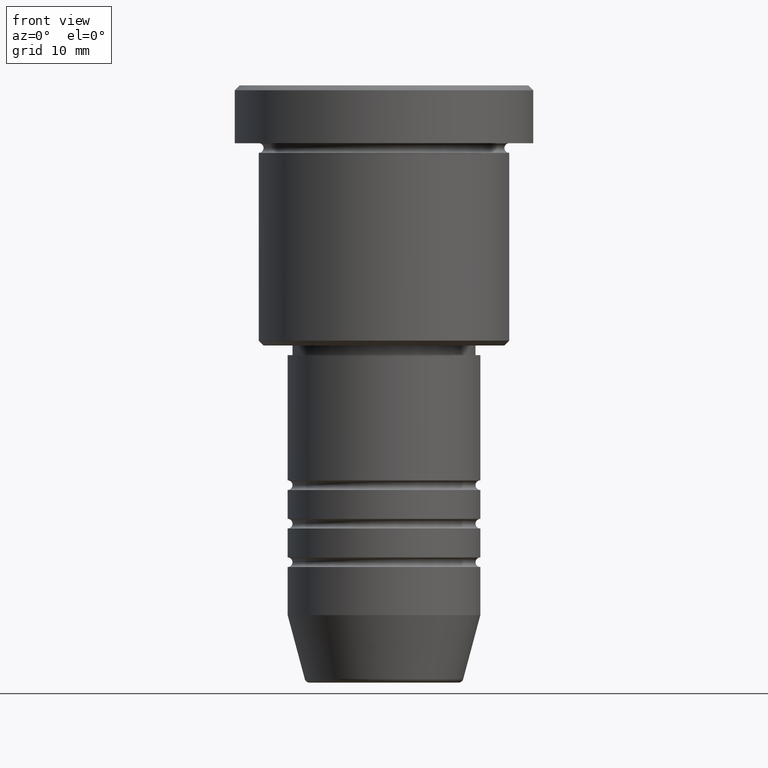
[diagram: clean part render]
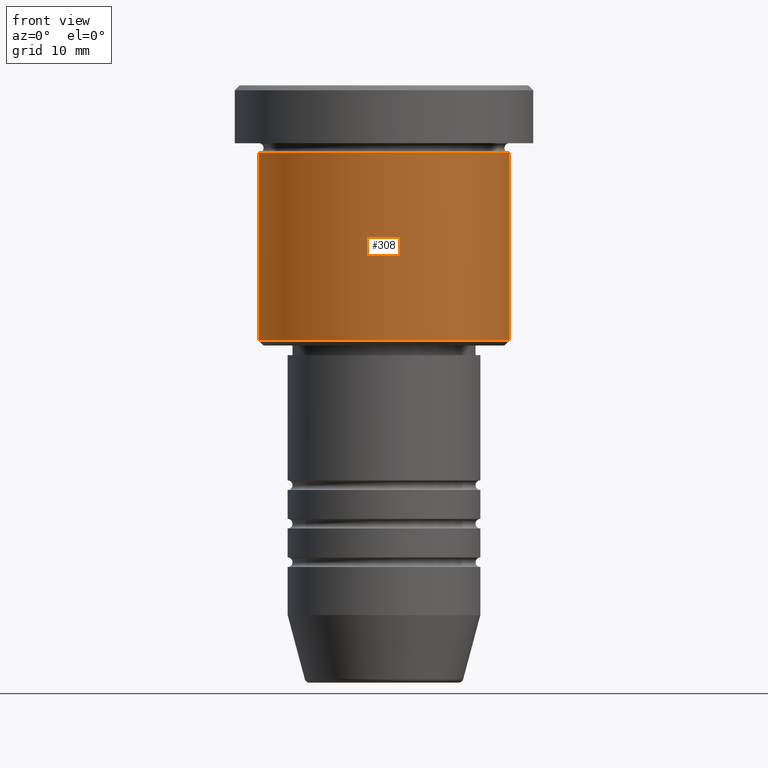
[diagram: same view with one face highlighted and labeled with its STEP entity id]
A machine part, front view. The second image highlights one B-rep face of the part: STEP entity #308.
In plain terms, the highlighted cylindrical surface (partial cylindrical patch) has radius 13 mm, axis along (-0, -0, 1).
Its self-contained STEP definition (entity closure, byte-faithful):
#22 = ORIENTED_EDGE ( 'NONE', *, *, #668, .T. ) ;
#24 = EDGE_CURVE ( 'NONE', #1151, #827, #231, .T. ) ;
#34 = VECTOR ( 'NONE', #221, 1000.000000000000000 ) ;
#66 = DIRECTION ( 'NONE',  ( -0.000000000000000000, -0.000000000000000000, 1.000000000000000000 ) ) ;
#126 = CARTESIAN_POINT ( 'NONE',  ( 0.000000000000000000, 0.000000000000000000, 0.000000000000000000 ) ) ;
#155 = CARTESIAN_POINT ( 'NONE',  ( -13.00000000000000178, 1.592040838891559293E-15, -6.999999999999995559 ) ) ;
#221 = DIRECTION ( 'NONE',  ( -0.000000000000000000, -0.000000000000000000, 1.000000000000000000 ) ) ;
#231 = LINE ( 'NONE', #596, #663 ) ;
#306 = CARTESIAN_POINT ( 'NONE',  ( -13.00000000000000178, 1.592040838891559293E-15, -26.49999999999998934 ) ) ;
#308 = ADVANCED_FACE ( 'NONE', ( #580 ), #671, .T. ) ;
#311 = DIRECTION ( 'NONE',  ( 1.000000000000000000, 0.000000000000000000, 0.000000000000000000 ) ) ;
#327 = DIRECTION ( 'NONE',  ( 1.000000000000000000, 0.000000000000000000, 0.000000000000000000 ) ) ;
#334 = DIRECTION ( 'NONE',  ( -0.000000000000000000, -0.000000000000000000, 1.000000000000000000 ) ) ;
#352 = VERTEX_POINT ( 'NONE', #1049 ) ;
#366 = ORIENTED_EDGE ( 'NONE', *, *, #530, .F. ) ;
#402 = DIRECTION ( 'NONE',  ( -0.000000000000000000, -0.000000000000000000, 1.000000000000000000 ) ) ;
#416 = CARTESIAN_POINT ( 'NONE',  ( 0.000000000000000000, 0.000000000000000000, -6.999999999999995559 ) ) ;
#443 = AXIS2_PLACEMENT_3D ( 'NONE', #416, #334, #327 ) ;
#448 = CARTESIAN_POINT ( 'NONE',  ( 13.00000000000000178, 0.000000000000000000, -6.999999999999995559 ) ) ;
#526 = DIRECTION ( 'NONE',  ( -0.000000000000000000, -0.000000000000000000, 1.000000000000000000 ) ) ;
#530 = EDGE_CURVE ( 'NONE', #827, #787, #1165, .T. ) ;
#580 = FACE_OUTER_BOUND ( 'NONE', #879, .T. ) ;
#596 = CARTESIAN_POINT ( 'NONE',  ( -13.00000000000000178, 1.592040838891559293E-15, 0.000000000000000000 ) ) ;
#601 = CARTESIAN_POINT ( 'NONE',  ( 0.000000000000000000, 0.000000000000000000, -26.49999999999998934 ) ) ;
#624 = ORIENTED_EDGE ( 'NONE', *, *, #24, .F. ) ;
#660 = ORIENTED_EDGE ( 'NONE', *, *, #809, .T. ) ;
#663 = VECTOR ( 'NONE', #66, 1000.000000000000000 ) ;
#668 = EDGE_CURVE ( 'NONE', #352, #787, #673, .T. ) ;
#671 = CYLINDRICAL_SURFACE ( 'NONE', #1108, 13.00000000000000178 ) ;
#673 = LINE ( 'NONE', #1042, #34 ) ;
#708 = DIRECTION ( 'NONE',  ( -1.000000000000000000, 0.000000000000000000, 0.000000000000000000 ) ) ;
#787 = VERTEX_POINT ( 'NONE', #448 ) ;
#809 = EDGE_CURVE ( 'NONE', #1151, #352, #922, .T. ) ;
#827 = VERTEX_POINT ( 'NONE', #155 ) ;
#865 = AXIS2_PLACEMENT_3D ( 'NONE', #601, #526, #708 ) ;
#879 = EDGE_LOOP ( 'NONE', ( #624, #660, #22, #366 ) ) ;
#922 = CIRCLE ( 'NONE', #865, 13.00000000000000178 ) ;
#1042 = CARTESIAN_POINT ( 'NONE',  ( 13.00000000000000178, 0.000000000000000000, 0.000000000000000000 ) ) ;
#1049 = CARTESIAN_POINT ( 'NONE',  ( 13.00000000000000178, 0.000000000000000000, -26.49999999999998934 ) ) ;
#1108 = AXIS2_PLACEMENT_3D ( 'NONE', #126, #402, #311 ) ;
#1151 = VERTEX_POINT ( 'NONE', #306 ) ;
#1165 = CIRCLE ( 'NONE', #443, 13.00000000000000178 ) ;